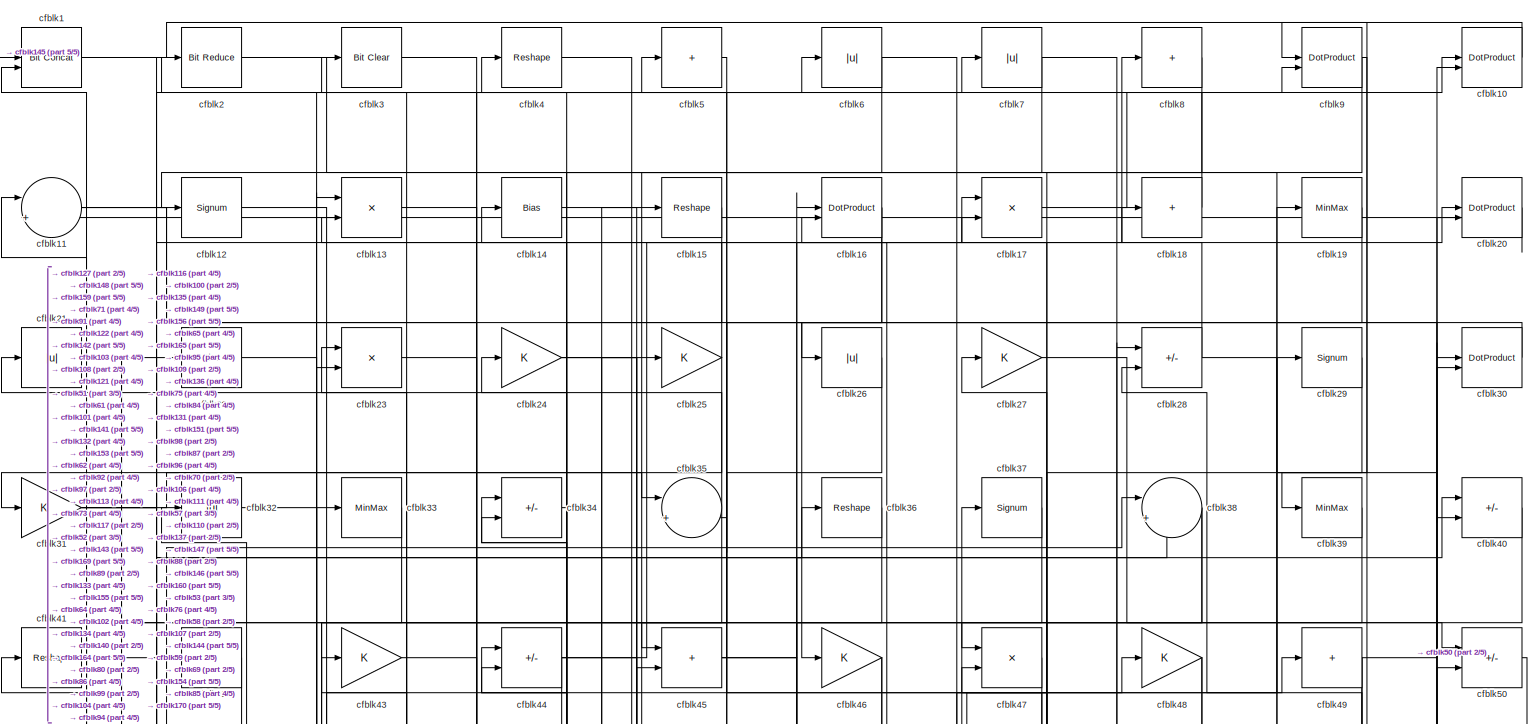
[diagram: root canvas - part 1/5, full width, top band]
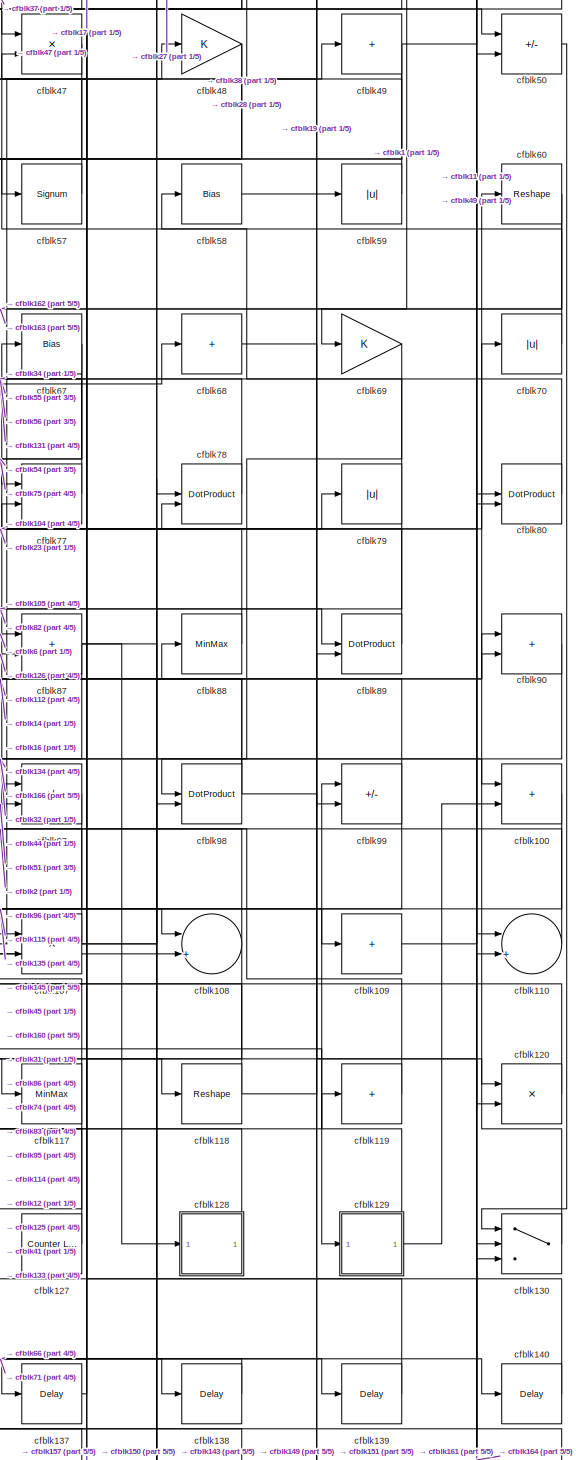
[diagram: root canvas - part 2/5, middle right region]
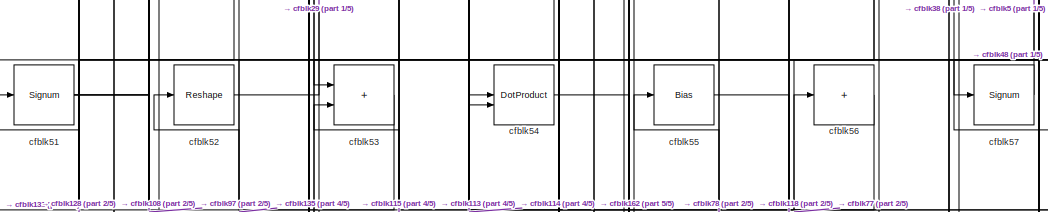
[diagram: root canvas - part 3/5, top center region]
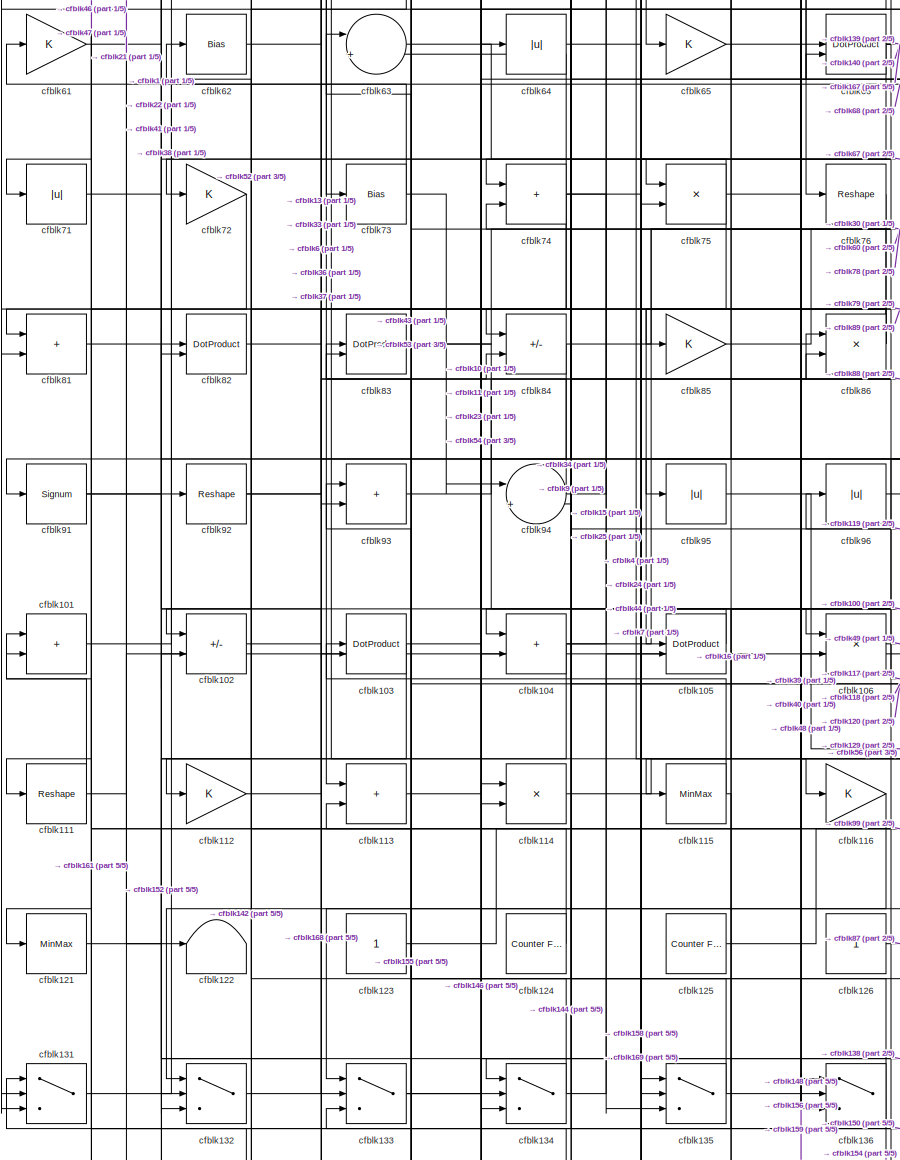
[diagram: root canvas - part 4/5, middle left region]
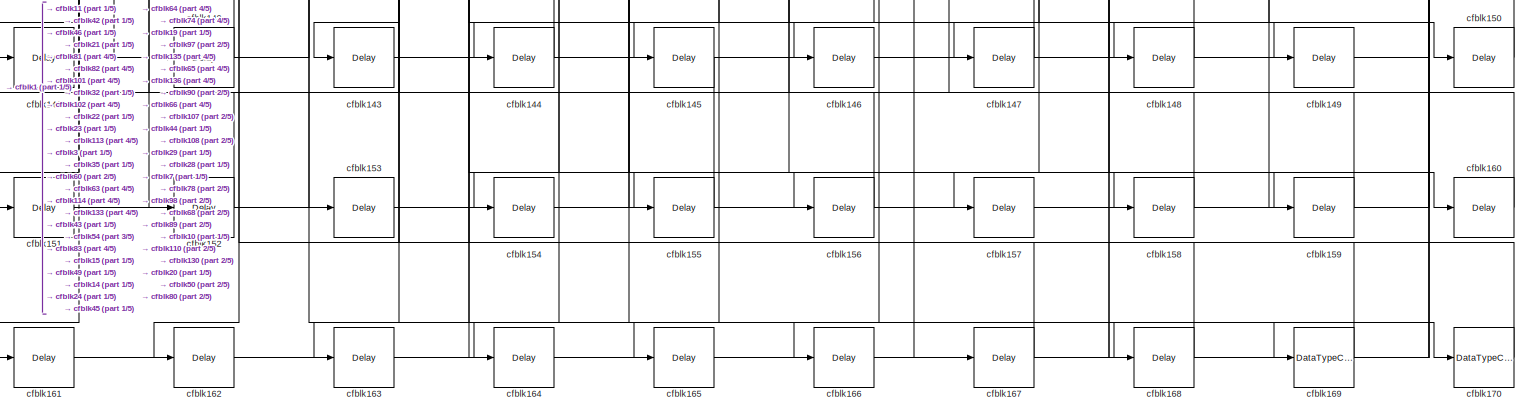
[diagram: root canvas - part 5/5, full width, bottom band]
MODEL slx_db58ea1576e2
KIND model
CONFIG AbsTol = auto
CONFIG EnableMultiTasking = off
CONFIG FixedStep = auto
CONFIG MaxStep = auto
CONFIG MinStep = auto
CONFIG RelTol = 1e-3
CONFIG SampleTimeConstraint = Unconstrained
CONFIG SolverName = VariableStepAuto
CONFIG StartTime = 0.0
CONFIG StopTime = 10.0
BLOCK [Reference] cfblk1  REF=hdlsllib/Logic and Bit
Operations/Bit Concat
  SourceBlock = hdlsllib/Logic and Bit\nOperations/Bit Concat
  SourceType = Bit Concat
BLOCK [DotProduct] cfblk10
  OutDataTypeStr = Inherit: Inherit via internal rule
BLOCK [Sum] cfblk100
  IconShape = rectangular
BLOCK [Sum] cfblk101
  IconShape = rectangular
BLOCK [Sum] cfblk102
  IconShape = rectangular
  Inputs = +-
BLOCK [DotProduct] cfblk103
  OutDataTypeStr = Inherit: Inherit via internal rule
BLOCK [Sum] cfblk104
  IconShape = rectangular
BLOCK [DotProduct] cfblk105
  OutDataTypeStr = Inherit: Inherit via internal rule
BLOCK [Product] cfblk106
  Inputs = */
  RndMeth = Zero
  SaturateOnIntegerOverflow = on
BLOCK [Product] cfblk107
  Inputs = */
  RndMeth = Zero
  SaturateOnIntegerOverflow = on
BLOCK [Sum] cfblk108
  Inputs = |++
BLOCK [Sum] cfblk109
  IconShape = rectangular
  Inputs = +
BLOCK [Sum] cfblk11
  Inputs = |++
BLOCK [Sum] cfblk110
  Inputs = |++
BLOCK [Reshape] cfblk111
BLOCK [Gain] cfblk112
BLOCK [Sum] cfblk113
  IconShape = rectangular
BLOCK [Product] cfblk114
  Inputs = */
  RndMeth = Zero
  SaturateOnIntegerOverflow = on
BLOCK [MinMax] cfblk115
BLOCK [Gain] cfblk116
BLOCK [MinMax] cfblk117
BLOCK [Reshape] cfblk118
BLOCK [Sum] cfblk119
  IconShape = rectangular
  Inputs = +
BLOCK [Signum] cfblk12
BLOCK [Product] cfblk120
  Inputs = */
  RndMeth = Zero
  SaturateOnIntegerOverflow = on
BLOCK [MinMax] cfblk121
BLOCK [Terminator] cfblk122
BLOCK [Constant] cfblk123
  SampleTime = -1
BLOCK [Reference] cfblk124  REF=hdlsllib/Sources/Counter
Free-Running
  SourceBlock = hdlsllib/Sources/Counter\nFree-Running
  SourceType = Counter Free-Running
BLOCK [Reference] cfblk125  REF=hdlsllib/Sources/Counter
Free-Running
  SourceBlock = hdlsllib/Sources/Counter\nFree-Running
  SourceType = Counter Free-Running
BLOCK [Constant] cfblk126
  SampleTime = -1
BLOCK [Reference] cfblk127  REF=hdlsllib/Sources/Counter
Limited
  SourceBlock = hdlsllib/Sources/Counter\nLimited
  SourceType = Counter Limited
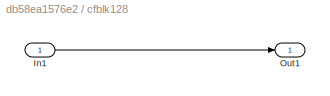
BLOCK [SubSystem] cfblk128
  LibrarySourceBlock = hdlsllib/Ports &\nSubsystems/Subsystem
BLOCK [Inport] cfblk128/In1
BLOCK [Outport] cfblk128/Out1
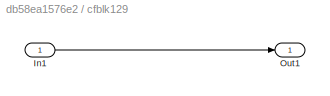
BLOCK [SubSystem] cfblk129
  LibrarySourceBlock = hdlsllib/Ports &\nSubsystems/Subsystem
BLOCK [Inport] cfblk129/In1
BLOCK [Outport] cfblk129/Out1
BLOCK [Product] cfblk13
  Inputs = */
  RndMeth = Zero
  SaturateOnIntegerOverflow = on
BLOCK [Switch] cfblk130
  InputSameDT = off
  SaturateOnIntegerOverflow = off
BLOCK [Switch] cfblk131
  InputSameDT = off
  SaturateOnIntegerOverflow = off
BLOCK [Switch] cfblk132
  InputSameDT = off
  SaturateOnIntegerOverflow = off
BLOCK [Switch] cfblk133
  InputSameDT = off
  SaturateOnIntegerOverflow = off
BLOCK [Switch] cfblk134
  InputSameDT = off
  SaturateOnIntegerOverflow = off
BLOCK [Switch] cfblk135
  InputSameDT = off
  SaturateOnIntegerOverflow = off
BLOCK [Switch] cfblk136
  InputSameDT = off
  SaturateOnIntegerOverflow = off
BLOCK [Delay] cfblk137
  InputPortMap = u0
  SampleTime = 1
BLOCK [Delay] cfblk138
  InputPortMap = u0
  SampleTime = 1
BLOCK [Delay] cfblk139
  InputPortMap = u0
  SampleTime = 1
BLOCK [Bias] cfblk14
  Bias = 0.0
  SaturateOnIntegerOverflow = off
BLOCK [Delay] cfblk140
  InputPortMap = u0
  SampleTime = 1
BLOCK [Delay] cfblk141
  InputPortMap = u0
  SampleTime = 1
BLOCK [Delay] cfblk142
  InputPortMap = u0
  SampleTime = 1
BLOCK [Delay] cfblk143
  InputPortMap = u0
  SampleTime = 1
BLOCK [Delay] cfblk144
  InputPortMap = u0
  SampleTime = 1
BLOCK [Delay] cfblk145
  InputPortMap = u0
  SampleTime = 1
BLOCK [Delay] cfblk146
  InputPortMap = u0
  SampleTime = 1
BLOCK [Delay] cfblk147
  InputPortMap = u0
  SampleTime = 1
BLOCK [Delay] cfblk148
  InputPortMap = u0
  SampleTime = 1
BLOCK [Delay] cfblk149
  InputPortMap = u0
  SampleTime = 1
BLOCK [Reshape] cfblk15
BLOCK [Delay] cfblk150
  InputPortMap = u0
  SampleTime = 1
BLOCK [Delay] cfblk151
  InputPortMap = u0
  SampleTime = 1
BLOCK [Delay] cfblk152
  InputPortMap = u0
  SampleTime = 1
BLOCK [Delay] cfblk153
  InputPortMap = u0
  SampleTime = 1
BLOCK [Delay] cfblk154
  InputPortMap = u0
  SampleTime = 1
BLOCK [Delay] cfblk155
  InputPortMap = u0
  SampleTime = 1
BLOCK [Delay] cfblk156
  InputPortMap = u0
  SampleTime = 1
BLOCK [Delay] cfblk157
  InputPortMap = u0
  SampleTime = 1
BLOCK [Delay] cfblk158
  InputPortMap = u0
  SampleTime = 1
BLOCK [Delay] cfblk159
  InputPortMap = u0
  SampleTime = 1
BLOCK [DotProduct] cfblk16
  OutDataTypeStr = Inherit: Inherit via internal rule
BLOCK [Delay] cfblk160
  InputPortMap = u0
  SampleTime = 1
BLOCK [Delay] cfblk161
  InputPortMap = u0
  SampleTime = 1
BLOCK [Delay] cfblk162
  InputPortMap = u0
  SampleTime = 1
BLOCK [Delay] cfblk163
  InputPortMap = u0
  SampleTime = 1
BLOCK [Delay] cfblk164
  InputPortMap = u0
  SampleTime = 1
BLOCK [Delay] cfblk165
  InputPortMap = u0
  SampleTime = 1
BLOCK [Delay] cfblk166
  InputPortMap = u0
  SampleTime = 1
BLOCK [Delay] cfblk167
  InputPortMap = u0
  SampleTime = 1
BLOCK [Delay] cfblk168
  InputPortMap = u0
  SampleTime = 1
BLOCK [DataTypeConversion] cfblk169
  OutDataTypeStr = boolean
  RndMeth = Floor
  SaturateOnIntegerOverflow = off
BLOCK [Product] cfblk17
  Inputs = */
  RndMeth = Zero
  SaturateOnIntegerOverflow = on
BLOCK [DataTypeConversion] cfblk170
  OutDataTypeStr = uint8
  RndMeth = Floor
  SaturateOnIntegerOverflow = off
BLOCK [Sum] cfblk18
  IconShape = rectangular
  Inputs = +
BLOCK [MinMax] cfblk19
BLOCK [Reference] cfblk2  REF=hdlsllib/Logic and Bit
Operations/Bit Reduce
  SourceBlock = hdlsllib/Logic and Bit\nOperations/Bit Reduce
  SourceType = Bit Reduce
BLOCK [DotProduct] cfblk20
  OutDataTypeStr = Inherit: Inherit via internal rule
BLOCK [Abs] cfblk21
  SaturateOnIntegerOverflow = off
BLOCK [Bias] cfblk22
  Bias = 0.0
  SaturateOnIntegerOverflow = off
BLOCK [Product] cfblk23
  Inputs = */
  RndMeth = Zero
  SaturateOnIntegerOverflow = on
BLOCK [Gain] cfblk24
BLOCK [Gain] cfblk25
BLOCK [Abs] cfblk26
  SaturateOnIntegerOverflow = off
BLOCK [Gain] cfblk27
BLOCK [Sum] cfblk28
  IconShape = rectangular
  Inputs = +-
BLOCK [Signum] cfblk29
BLOCK [Reference] cfblk3  REF=simulink/Logic and Bit
Operations/Bit Clear
  LibrarySourceBlock = hdlsllib/Logic and Bit\nOperations/Bit Clear
  SourceBlock = simulink/Logic and Bit\nOperations/Bit Clear
  SourceType = Bit Clear
BLOCK [DotProduct] cfblk30
  OutDataTypeStr = Inherit: Inherit via internal rule
BLOCK [Gain] cfblk31
BLOCK [Abs] cfblk32
  SaturateOnIntegerOverflow = off
BLOCK [MinMax] cfblk33
BLOCK [Sum] cfblk34
  IconShape = rectangular
  Inputs = +-
BLOCK [Sum] cfblk35
  Inputs = |++
BLOCK [Reshape] cfblk36
BLOCK [Signum] cfblk37
BLOCK [Sum] cfblk38
  Inputs = |++
BLOCK [MinMax] cfblk39
BLOCK [Reshape] cfblk4
BLOCK [Sum] cfblk40
  IconShape = rectangular
  Inputs = +-
BLOCK [Reshape] cfblk41
BLOCK [Sum] cfblk42
  IconShape = rectangular
  Inputs = +
BLOCK [Gain] cfblk43
BLOCK [Sum] cfblk44
  IconShape = rectangular
  Inputs = +-
BLOCK [Sum] cfblk45
  IconShape = rectangular
BLOCK [Gain] cfblk46
BLOCK [Product] cfblk47
  Inputs = */
  RndMeth = Zero
  SaturateOnIntegerOverflow = on
BLOCK [Gain] cfblk48
BLOCK [Sum] cfblk49
  IconShape = rectangular
  Inputs = +
BLOCK [Sum] cfblk5
  IconShape = rectangular
  Inputs = +
BLOCK [Sum] cfblk50
  IconShape = rectangular
  Inputs = +-
BLOCK [Signum] cfblk51
BLOCK [Reshape] cfblk52
BLOCK [Sum] cfblk53
  IconShape = rectangular
BLOCK [DotProduct] cfblk54
  OutDataTypeStr = Inherit: Inherit via internal rule
BLOCK [Bias] cfblk55
  Bias = 0.0
  SaturateOnIntegerOverflow = off
BLOCK [Sum] cfblk56
  IconShape = rectangular
  Inputs = +
BLOCK [Signum] cfblk57
BLOCK [Bias] cfblk58
  Bias = 0.0
  SaturateOnIntegerOverflow = off
BLOCK [Abs] cfblk59
  SaturateOnIntegerOverflow = off
BLOCK [Abs] cfblk6
  SaturateOnIntegerOverflow = off
BLOCK [Reshape] cfblk60
BLOCK [Gain] cfblk61
BLOCK [Bias] cfblk62
  Bias = 0.0
  SaturateOnIntegerOverflow = off
BLOCK [Sum] cfblk63
  Inputs = |++
BLOCK [Abs] cfblk64
  SaturateOnIntegerOverflow = off
BLOCK [Gain] cfblk65
BLOCK [DotProduct] cfblk66
  OutDataTypeStr = Inherit: Inherit via internal rule
BLOCK [Bias] cfblk67
  Bias = 0.0
  SaturateOnIntegerOverflow = off
BLOCK [Sum] cfblk68
  IconShape = rectangular
  Inputs = +
BLOCK [Gain] cfblk69
BLOCK [Abs] cfblk7
  SaturateOnIntegerOverflow = off
BLOCK [Abs] cfblk70
  SaturateOnIntegerOverflow = off
BLOCK [Abs] cfblk71
  SaturateOnIntegerOverflow = off
BLOCK [Gain] cfblk72
BLOCK [Bias] cfblk73
  Bias = 0.0
  SaturateOnIntegerOverflow = off
BLOCK [Sum] cfblk74
  IconShape = rectangular
BLOCK [Product] cfblk75
  Inputs = */
  RndMeth = Zero
  SaturateOnIntegerOverflow = on
BLOCK [Reshape] cfblk76
BLOCK [Sum] cfblk77
  IconShape = rectangular
  Inputs = +-
BLOCK [DotProduct] cfblk78
  OutDataTypeStr = Inherit: Inherit via internal rule
BLOCK [Abs] cfblk79
  SaturateOnIntegerOverflow = off
BLOCK [Sum] cfblk8
  IconShape = rectangular
  Inputs = +
BLOCK [DotProduct] cfblk80
  OutDataTypeStr = Inherit: Inherit via internal rule
BLOCK [Sum] cfblk81
  IconShape = rectangular
BLOCK [DotProduct] cfblk82
  OutDataTypeStr = Inherit: Inherit via internal rule
BLOCK [DotProduct] cfblk83
  OutDataTypeStr = Inherit: Inherit via internal rule
BLOCK [Sum] cfblk84
  IconShape = rectangular
  Inputs = +-
BLOCK [Gain] cfblk85
BLOCK [Product] cfblk86
  Inputs = */
  RndMeth = Zero
  SaturateOnIntegerOverflow = on
BLOCK [Sum] cfblk87
  IconShape = rectangular
BLOCK [MinMax] cfblk88
BLOCK [DotProduct] cfblk89
  OutDataTypeStr = Inherit: Inherit via internal rule
BLOCK [DotProduct] cfblk9
  OutDataTypeStr = Inherit: Inherit via internal rule
BLOCK [Sum] cfblk90
  IconShape = rectangular
BLOCK [Signum] cfblk91
BLOCK [Reshape] cfblk92
BLOCK [Sum] cfblk93
  IconShape = rectangular
BLOCK [Sum] cfblk94
  Inputs = |++
BLOCK [Abs] cfblk95
  SaturateOnIntegerOverflow = off
BLOCK [Abs] cfblk96
  SaturateOnIntegerOverflow = off
BLOCK [Sum] cfblk97
  IconShape = rectangular
  Inputs = +-
BLOCK [DotProduct] cfblk98
  OutDataTypeStr = Inherit: Inherit via internal rule
BLOCK [Sum] cfblk99
  IconShape = rectangular
  Inputs = +-
LINE cfblk100:1 -> cfblk135:2
LINE cfblk101:1 -> cfblk38:1
LINE cfblk102:1 -> cfblk168:1
NET cfblk103:1 -> cfblk132:2, cfblk66:2
NET cfblk104:1 -> cfblk132:3, cfblk15:1, cfblk60:1
LINE cfblk105:1 -> cfblk104:1
LINE cfblk106:1 -> cfblk49:1
NET cfblk107:1 -> cfblk67:1, cfblk79:1, cfblk90:1
NET cfblk108:1 -> cfblk157:1, cfblk2:1
LINE cfblk109:1 -> cfblk80:1
LINE cfblk10:1 -> cfblk9:1
LINE cfblk110:1 -> cfblk27:1
NET cfblk111:1 -> cfblk101:1, cfblk102:2
LINE cfblk112:1 -> cfblk88:1
LINE cfblk113:1 -> cfblk54:1
LINE cfblk114:1 -> cfblk120:1
NET cfblk115:1 -> cfblk131:1, cfblk53:2
LINE cfblk116:1 -> cfblk132:1
NET cfblk117:1 -> cfblk133:1, cfblk86:2
NET cfblk118:1 -> cfblk59:1, cfblk74:2
LINE cfblk119:1 -> cfblk96:1
NET cfblk11:1 -> cfblk104:2, cfblk110:1
LINE cfblk120:1 -> cfblk83:1
LINE cfblk121:1 -> cfblk22:1
LINE cfblk123:1 -> cfblk106:2
LINE cfblk124:1 -> cfblk62:1
LINE cfblk125:1 -> cfblk99:1
LINE cfblk126:1 -> cfblk87:2
LINE cfblk127:1 -> cfblk41:1
LINE cfblk128/In1:1 -> cfblk128/Out1:1
LINE cfblk128:1 -> cfblk51:1
LINE cfblk129/In1:1 -> cfblk129/Out1:1
NET cfblk129:1 -> cfblk100:2, cfblk119:1
LINE cfblk12:1 -> cfblk117:1
LINE cfblk130:1 -> cfblk70:1
LINE cfblk131:1 -> cfblk68:1
LINE cfblk132:1 -> cfblk33:1
NET cfblk133:1 -> cfblk10:1, cfblk146:1
NET cfblk134:1 -> cfblk103:1, cfblk105:2
NET cfblk135:1 -> cfblk148:1, cfblk52:1
NET cfblk136:1 -> cfblk154:1, cfblk93:1
LINE cfblk137:1 -> cfblk47:2
LINE cfblk138:1 -> cfblk134:2
LINE cfblk139:1 -> cfblk77:2
LINE cfblk13:1 -> cfblk64:1
LINE cfblk140:1 -> cfblk34:2
LINE cfblk141:1 -> cfblk23:2
LINE cfblk142:1 -> cfblk101:2
LINE cfblk143:1 -> cfblk130:2
LINE cfblk144:1 -> cfblk83:2
LINE cfblk145:1 -> cfblk1:1
LINE cfblk146:1 -> cfblk28:1
LINE cfblk147:1 -> cfblk44:2
LINE cfblk148:1 -> cfblk1:2
LINE cfblk149:1 -> cfblk50:2
LINE cfblk14:1 -> cfblk156:1
LINE cfblk150:1 -> cfblk136:1
LINE cfblk151:1 -> cfblk80:2
LINE cfblk152:1 -> cfblk82:1
LINE cfblk153:1 -> cfblk45:2
LINE cfblk154:1 -> cfblk10:2
LINE cfblk155:1 -> cfblk133:3
LINE cfblk156:1 -> cfblk66:1
LINE cfblk157:1 -> cfblk89:2
LINE cfblk158:1 -> cfblk63:1
LINE cfblk159:1 -> cfblk11:1
LINE cfblk15:1 -> cfblk164:1
LINE cfblk160:1 -> cfblk107:1
LINE cfblk161:1 -> cfblk130:3
LINE cfblk162:1 -> cfblk54:2
LINE cfblk163:1 -> cfblk98:2
LINE cfblk164:1 -> cfblk110:2
LINE cfblk165:1 -> cfblk20:2
LINE cfblk166:1 -> cfblk78:1
LINE cfblk167:1 -> cfblk113:2
LINE cfblk168:1 -> cfblk114:1
LINE cfblk169:1 -> cfblk3:1
NET cfblk16:1 -> cfblk46:1, cfblk95:1
LINE cfblk170:1 -> cfblk32:1
LINE cfblk17:1 -> cfblk9:2
LINE cfblk18:1 -> cfblk4:1
LINE cfblk19:1 -> cfblk165:1
NET cfblk1:1 -> cfblk103:2, cfblk69:1
LINE cfblk20:1 -> cfblk11:2
NET cfblk21:1 -> cfblk122:1, cfblk142:1, cfblk42:1
LINE cfblk22:1 -> cfblk153:1
LINE cfblk23:1 -> cfblk106:1
NET cfblk24:1 -> cfblk135:1, cfblk149:1
NET cfblk25:1 -> cfblk13:2, cfblk31:1
LINE cfblk26:1 -> cfblk35:2
LINE cfblk27:1 -> cfblk50:1
NET cfblk28:1 -> cfblk40:2, cfblk8:1
LINE cfblk29:1 -> cfblk147:1
LINE cfblk2:1 -> cfblk99:2
LINE cfblk30:1 -> cfblk26:1
NET cfblk31:1 -> cfblk108:2, cfblk18:1, cfblk35:1
LINE cfblk32:1 -> cfblk97:1
LINE cfblk33:1 -> cfblk71:1
LINE cfblk34:1 -> cfblk134:1
NET cfblk35:1 -> cfblk143:1, cfblk21:1
LINE cfblk36:1 -> cfblk73:1
LINE cfblk37:1 -> cfblk113:1
NET cfblk38:1 -> cfblk137:1, cfblk57:1
LINE cfblk39:1 -> cfblk136:2
LINE cfblk3:1 -> cfblk170:1
LINE cfblk40:1 -> cfblk91:1
LINE cfblk41:1 -> cfblk92:1
LINE cfblk42:1 -> cfblk141:1
LINE cfblk43:1 -> cfblk155:1
NET cfblk44:1 -> cfblk100:1, cfblk102:1, cfblk20:1
NET cfblk45:1 -> cfblk109:1, cfblk17:2
NET cfblk46:1 -> cfblk131:2, cfblk151:1
LINE cfblk47:1 -> cfblk111:1
NET cfblk48:1 -> cfblk53:1, cfblk76:1
NET cfblk49:1 -> cfblk107:2, cfblk144:1, cfblk30:2
LINE cfblk4:1 -> cfblk116:1
LINE cfblk50:1 -> cfblk130:1
NET cfblk51:1 -> cfblk108:1, cfblk38:2, cfblk97:2
LINE cfblk52:1 -> cfblk29:1
LINE cfblk53:1 -> cfblk131:3
LINE cfblk54:1 -> cfblk77:1
LINE cfblk55:1 -> cfblk118:1
LINE cfblk56:1 -> cfblk114:2
LINE cfblk57:1 -> cfblk5:1
LINE cfblk58:1 -> cfblk19:1
LINE cfblk59:1 -> cfblk28:2
LINE cfblk5:1 -> cfblk45:1
NET cfblk60:1 -> cfblk162:1, cfblk163:1
LINE cfblk61:1 -> cfblk7:1
LINE cfblk62:1 -> cfblk13:1
LINE cfblk63:1 -> cfblk75:1
LINE cfblk64:1 -> cfblk158:1
LINE cfblk65:1 -> cfblk159:1
NET cfblk66:1 -> cfblk139:1, cfblk140:1, cfblk167:1, cfblk82:2
NET cfblk67:1 -> cfblk74:1, cfblk75:2
LINE cfblk68:1 -> cfblk150:1
LINE cfblk69:1 -> cfblk98:1
NET cfblk6:1 -> cfblk12:1, cfblk87:1
LINE cfblk70:1 -> cfblk37:1
LINE cfblk71:1 -> cfblk138:1
LINE cfblk72:1 -> cfblk81:1
NET cfblk73:1 -> cfblk61:1, cfblk94:1
NET cfblk74:1 -> cfblk135:3, cfblk161:1, cfblk169:1, cfblk63:2, cfblk93:2
NET cfblk75:1 -> cfblk112:1, cfblk40:1, cfblk72:1
LINE cfblk76:1 -> cfblk81:2
LINE cfblk77:1 -> cfblk56:1
LINE cfblk78:1 -> cfblk55:1
NET cfblk79:1 -> cfblk105:1, cfblk58:1
NET cfblk7:1 -> cfblk160:1, cfblk65:1
LINE cfblk80:1 -> cfblk34:1
LINE cfblk81:1 -> cfblk152:1
LINE cfblk82:1 -> cfblk89:1
NET cfblk83:1 -> cfblk136:3, cfblk78:2
NET cfblk84:1 -> cfblk121:1, cfblk16:1
LINE cfblk85:1 -> cfblk30:1
NET cfblk86:1 -> cfblk24:1, cfblk84:1, cfblk85:1
NET cfblk87:1 -> cfblk128:1, cfblk134:3, cfblk90:2
LINE cfblk88:1 -> cfblk17:1
LINE cfblk89:1 -> cfblk23:1
LINE cfblk8:1 -> cfblk47:1
LINE cfblk90:1 -> cfblk166:1
NET cfblk91:1 -> cfblk133:2, cfblk36:1
NET cfblk92:1 -> cfblk6:1, cfblk84:2
LINE cfblk93:1 -> cfblk86:1
NET cfblk94:1 -> cfblk25:1, cfblk43:1
LINE cfblk95:1 -> cfblk129:1
LINE cfblk96:1 -> cfblk48:1
LINE cfblk97:1 -> cfblk145:1
NET cfblk98:1 -> cfblk120:2, cfblk16:2, cfblk44:1
NET cfblk99:1 -> cfblk115:1, cfblk14:1
NET cfblk9:1 -> cfblk39:1, cfblk94:2
note: NET lines group one-source signal fan-out (src -> all destinations, sorted); 1:1 wires keep LINE
